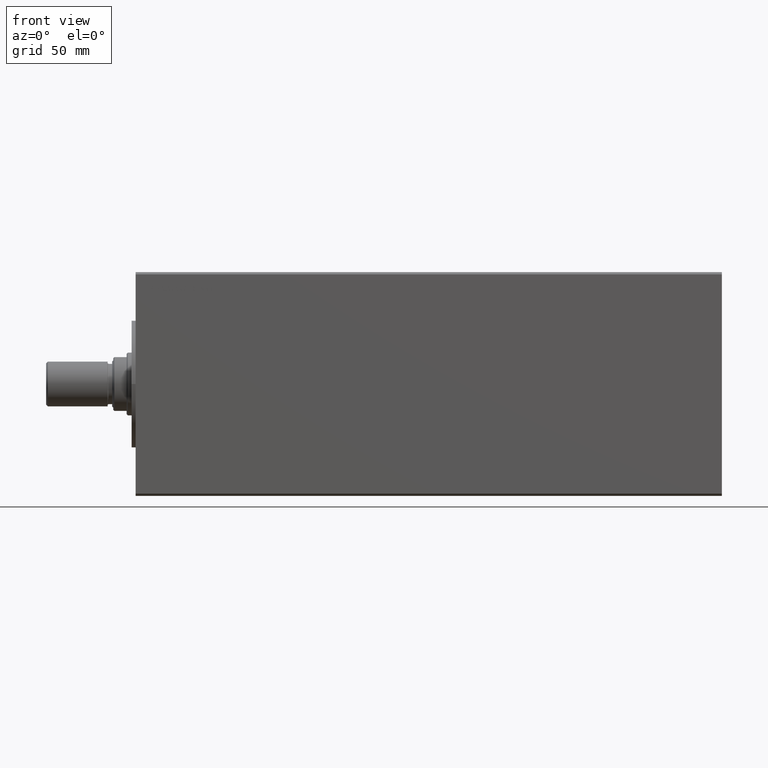
[diagram: clean part render]
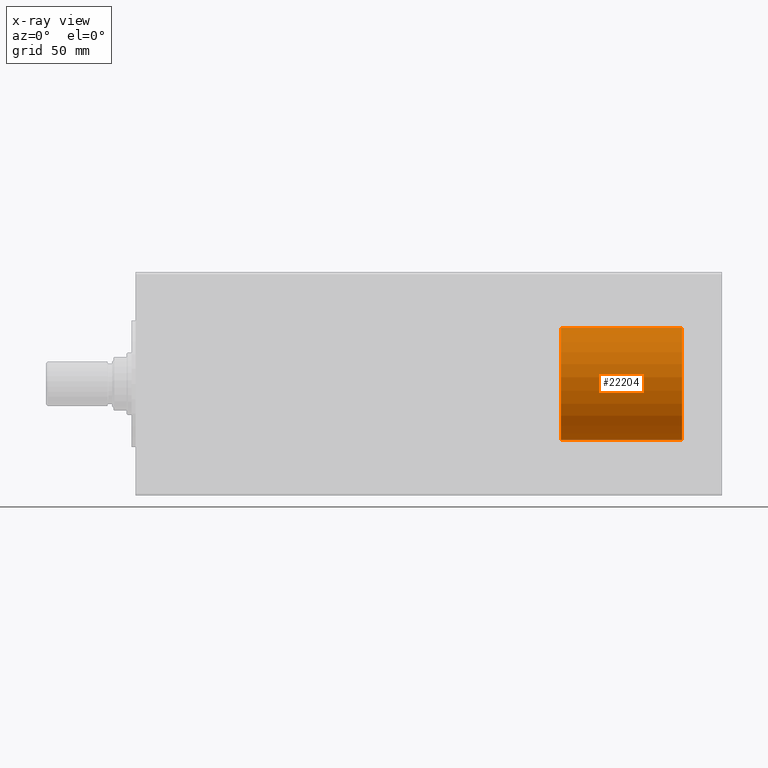
[diagram: x-ray — body ghosted, one internal face saturated and labeled with its STEP entity id]
A machine part, front view, then the same camera in x-ray: the body is ghosted and one INTERNAL B-rep face — a face not visible from any outside direction — is saturated and labeled: STEP entity #22204.
In plain terms, the highlighted cylindrical surface (partial cylindrical patch) has radius 25 mm, axis along (1, -0, -0).
Its self-contained STEP definition (entity closure, byte-faithful):
#894 = EDGE_LOOP ( 'NONE', ( #25513, #32321, #22222, #20337 ) ) ;
#1295 = CARTESIAN_POINT ( 'NONE',  ( 0.000000000000000000, 0.000000000000000000, 54.20000000000000284 ) ) ;
#2264 = AXIS2_PLACEMENT_3D ( 'NONE', #6056, #43843, #36431 ) ;
#3401 = VERTEX_POINT ( 'NONE', #40715 ) ;
#5702 = DIRECTION ( 'NONE',  ( -0.000000000000000000, -0.000000000000000000, -1.000000000000000000 ) ) ;
#6056 = CARTESIAN_POINT ( 'NONE',  ( 0.000000000000000000, 0.000000000000000000, 54.20000000000000284 ) ) ;
#6393 = VERTEX_POINT ( 'NONE', #24248 ) ;
#8850 = LINE ( 'NONE', #39897, #38061 ) ;
#12965 = EDGE_CURVE ( 'NONE', #6393, #41228, #8850, .T. ) ;
#15006 = DIRECTION ( 'NONE',  ( 0.000000000000000000, 0.000000000000000000, 1.000000000000000000 ) ) ;
#15110 = VERTEX_POINT ( 'NONE', #24420 ) ;
#15315 = CARTESIAN_POINT ( 'NONE',  ( -25.00000000000000000, 0.000000000000000000, 0.000000000000000000 ) ) ;
#16415 = CYLINDRICAL_SURFACE ( 'NONE', #2264, 25.00000000000000000 ) ;
#18100 = CARTESIAN_POINT ( 'NONE',  ( 0.000000000000000000, 0.000000000000000000, 0.000000000000000000 ) ) ;
#18537 = DIRECTION ( 'NONE',  ( 1.000000000000000000, 0.000000000000000000, 0.000000000000000000 ) ) ;
#19518 = EDGE_CURVE ( 'NONE', #41228, #15110, #33806, .T. ) ;
#20337 = ORIENTED_EDGE ( 'NONE', *, *, #19518, .T. ) ;
#21771 = VECTOR ( 'NONE', #30459, 1000.000000000000000 ) ;
#22204 = ADVANCED_FACE ( 'NONE', ( #43190 ), #16415, .T. ) ;
#22222 = ORIENTED_EDGE ( 'NONE', *, *, #12965, .T. ) ;
#22367 = DIRECTION ( 'NONE',  ( 0.000000000000000000, 0.000000000000000000, 1.000000000000000000 ) ) ;
#23737 = AXIS2_PLACEMENT_3D ( 'NONE', #18100, #22367, #18537 ) ;
#24248 = CARTESIAN_POINT ( 'NONE',  ( -25.00000000000000000, 0.000000000000000000, 54.20000000000000284 ) ) ;
#24420 = CARTESIAN_POINT ( 'NONE',  ( 25.00000000000000000, 3.061616997868382254E-15, 0.000000000000000000 ) ) ;
#25513 = ORIENTED_EDGE ( 'NONE', *, *, #30723, .F. ) ;
#30459 = DIRECTION ( 'NONE',  ( -0.000000000000000000, -0.000000000000000000, -1.000000000000000000 ) ) ;
#30723 = EDGE_CURVE ( 'NONE', #3401, #15110, #44185, .T. ) ;
#31352 = CARTESIAN_POINT ( 'NONE',  ( 25.00000000000000000, 3.061616997868382254E-15, 54.20000000000000284 ) ) ;
#32321 = ORIENTED_EDGE ( 'NONE', *, *, #43413, .F. ) ;
#32538 = DIRECTION ( 'NONE',  ( 1.000000000000000000, 0.000000000000000000, 0.000000000000000000 ) ) ;
#33806 = CIRCLE ( 'NONE', #23737, 25.00000000000000000 ) ;
#36431 = DIRECTION ( 'NONE',  ( -1.000000000000000000, 0.000000000000000000, 0.000000000000000000 ) ) ;
#36484 = AXIS2_PLACEMENT_3D ( 'NONE', #1295, #15006, #32538 ) ;
#38061 = VECTOR ( 'NONE', #5702, 1000.000000000000000 ) ;
#39897 = CARTESIAN_POINT ( 'NONE',  ( -25.00000000000000000, 0.000000000000000000, 54.20000000000000284 ) ) ;
#40715 = CARTESIAN_POINT ( 'NONE',  ( 25.00000000000000000, 3.061616997868382254E-15, 54.20000000000000284 ) ) ;
#40787 = CIRCLE ( 'NONE', #36484, 25.00000000000000000 ) ;
#41228 = VERTEX_POINT ( 'NONE', #15315 ) ;
#43190 = FACE_OUTER_BOUND ( 'NONE', #894, .T. ) ;
#43413 = EDGE_CURVE ( 'NONE', #6393, #3401, #40787, .T. ) ;
#43843 = DIRECTION ( 'NONE',  ( -0.000000000000000000, -0.000000000000000000, -1.000000000000000000 ) ) ;
#44185 = LINE ( 'NONE', #31352, #21771 ) ;